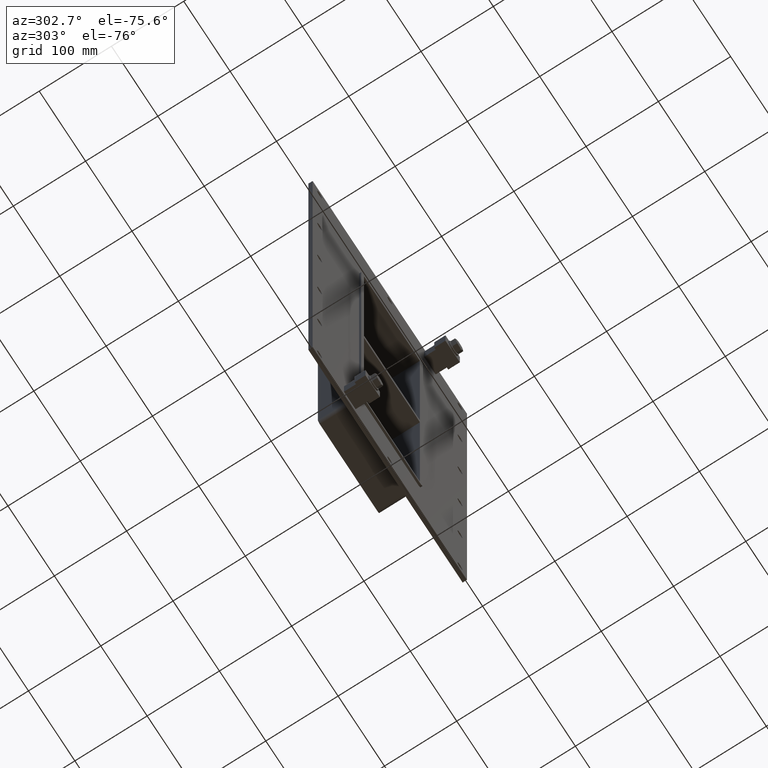
[diagram: clean part render]
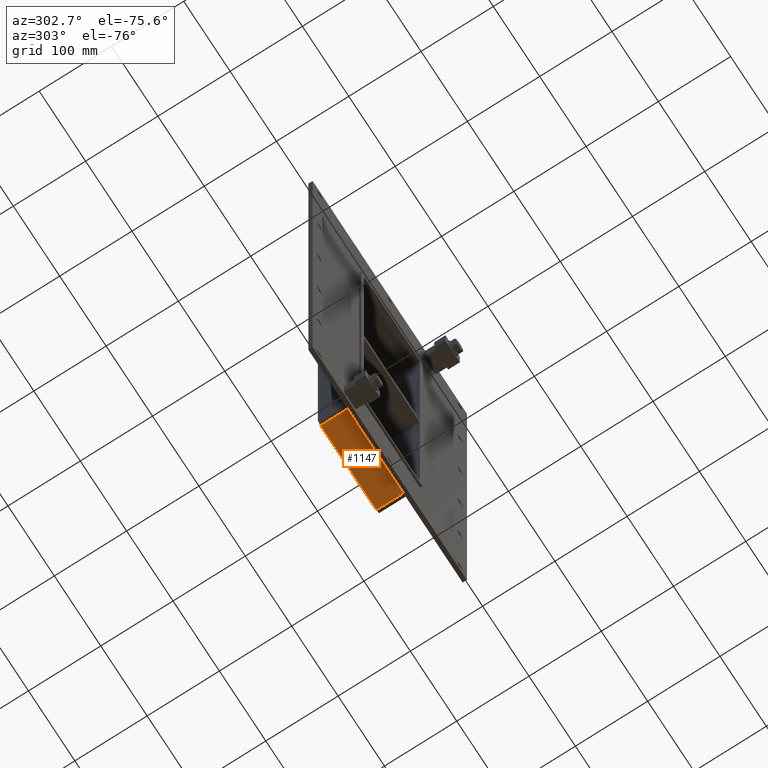
[diagram: same view with one face highlighted and labeled with its STEP entity id]
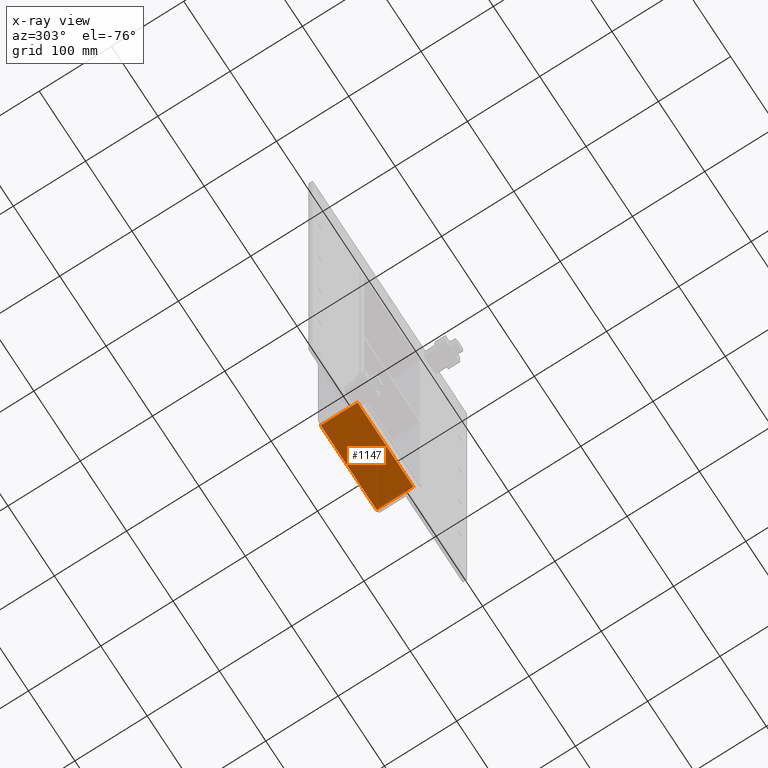
[diagram: x-ray of the same camera — body ghosted, the highlighted face saturated]
A machine part, auxiliary view. The second image highlights one B-rep face of the part: STEP entity #1147.
The next image is the same camera in x-ray: the body ghosted, the highlighted face saturated — about 0% of this face is hidden behind the body in this view.
In plain terms, the highlighted planar face has unit normal (0, 0, -1).
Its self-contained STEP definition (entity closure, byte-faithful):
#733=CARTESIAN_POINT('',(-60.25,6.000000000000001,-289.0));
#734=VERTEX_POINT('',#733);
#742=CARTESIAN_POINT('',(60.249999999999986,6.000000000000001,-289.0));
#743=VERTEX_POINT('',#742);
#744=CARTESIAN_POINT('',(60.249999999999986,6.000000000000001,-289.0));
#745=DIRECTION('',(-1.0,0.0,0.0));
#746=VECTOR('',#745,120.49999999999997);
#747=LINE('',#744,#746);
#748=EDGE_CURVE('',#743,#734,#747,.T.);
#1074=CARTESIAN_POINT('',(60.249999999999986,57.0,-289.0));
#1075=VERTEX_POINT('',#1074);
#1076=CARTESIAN_POINT('',(60.249999999999986,6.000000000000001,-289.0));
#1077=DIRECTION('',(0.0,1.0,0.0));
#1078=VECTOR('',#1077,51.0);
#1079=LINE('',#1076,#1078);
#1080=EDGE_CURVE('',#743,#1075,#1079,.T.);
#1124=CARTESIAN_POINT('',(66.249999999999986,0.0,-289.0));
#1125=DIRECTION('',(0.0,0.0,-1.0));
#1126=DIRECTION('',(-1.0,0.0,0.0));
#1127=AXIS2_PLACEMENT_3D('',#1124,#1125,#1126);
#1128=PLANE('',#1127);
#1129=ORIENTED_EDGE('',*,*,#748,.T.);
#1130=CARTESIAN_POINT('',(-60.249999999999993,57.0,-289.0));
#1131=VERTEX_POINT('',#1130);
#1132=CARTESIAN_POINT('',(-60.25,57.0,-289.0));
#1133=DIRECTION('',(0.0,-1.0,0.0));
#1134=VECTOR('',#1133,51.0);
#1135=LINE('',#1132,#1134);
#1136=EDGE_CURVE('',#1131,#734,#1135,.T.);
#1137=ORIENTED_EDGE('',*,*,#1136,.F.);
#1138=CARTESIAN_POINT('',(60.249999999999979,57.0,-289.0));
#1139=DIRECTION('',(-1.0,0.0,0.0));
#1140=VECTOR('',#1139,120.49999999999997);
#1141=LINE('',#1138,#1140);
#1142=EDGE_CURVE('',#1075,#1131,#1141,.T.);
#1143=ORIENTED_EDGE('',*,*,#1142,.F.);
#1144=ORIENTED_EDGE('',*,*,#1080,.F.);
#1145=EDGE_LOOP('',(#1129,#1137,#1143,#1144));
#1146=FACE_OUTER_BOUND('',#1145,.T.);
#1147=ADVANCED_FACE('',(#1146),#1128,.T.);